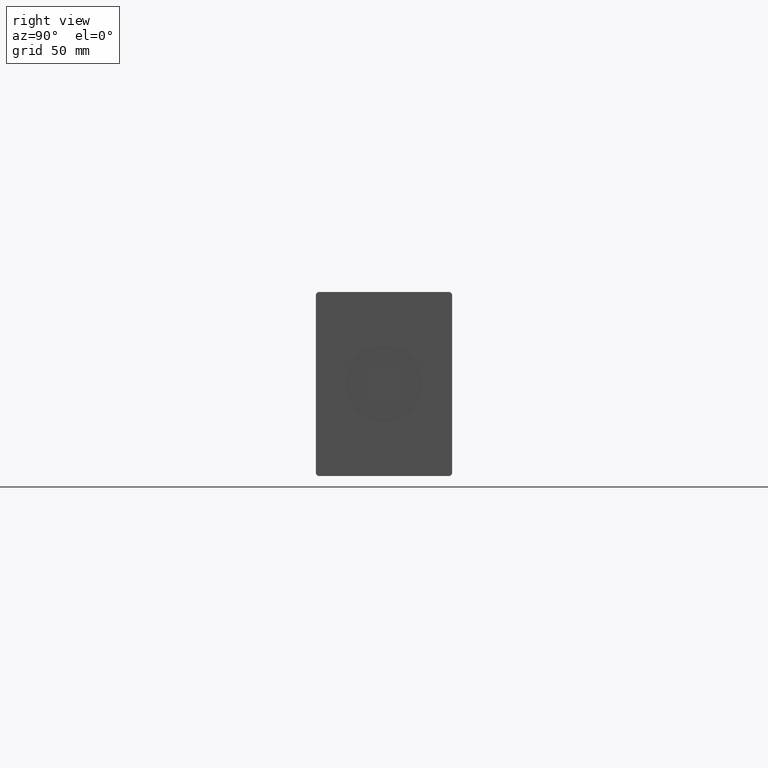
[diagram: clean part render]
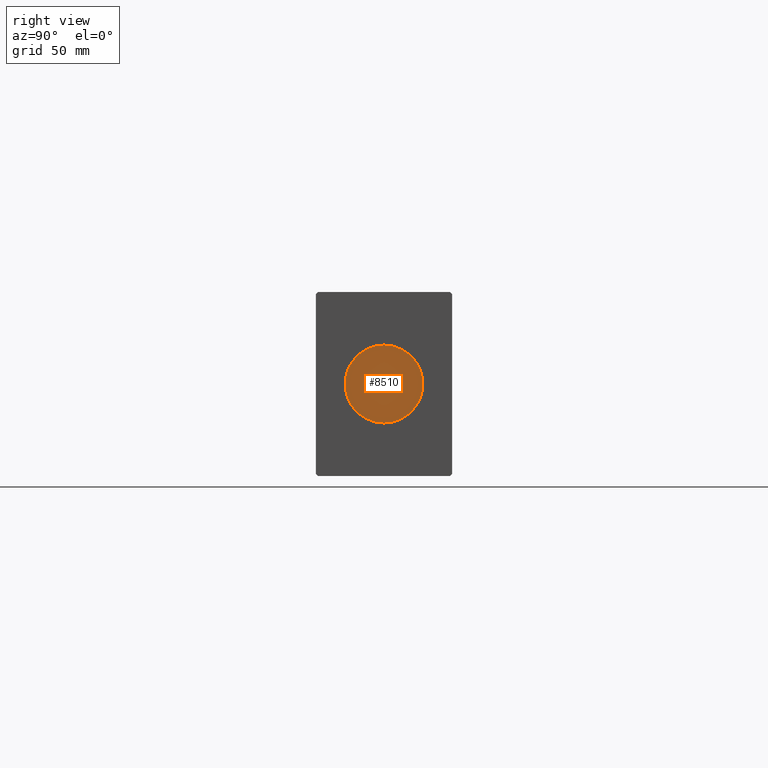
[diagram: same view with one face highlighted and labeled with its STEP entity id]
A machine part, right view. The second image highlights one B-rep face of the part: STEP entity #8510.
In plain terms, the highlighted planar face has unit normal (1, 0, 0).
Its self-contained STEP definition (entity closure, byte-faithful):
#1580 = EDGE_LOOP ( 'NONE', ( #8339, #39717 ) ) ;
#5329 = DIRECTION ( 'NONE',  ( 1.000000000000000000, 0.000000000000000000, 0.000000000000000000 ) ) ;
#8339 = ORIENTED_EDGE ( 'NONE', *, *, #15435, .T. ) ;
#8510 = ADVANCED_FACE ( 'NONE', ( #20925 ), #28368, .T. ) ;
#11555 = DIRECTION ( 'NONE',  ( 1.000000000000000000, 0.000000000000000000, 0.000000000000000000 ) ) ;
#14862 = CARTESIAN_POINT ( 'NONE',  ( 320.8000000000000114, 2.204364238465235428E-15, 18.00000000000000000 ) ) ;
#15435 = EDGE_CURVE ( 'NONE', #31396, #38246, #23981, .T. ) ;
#17901 = DIRECTION ( 'NONE',  ( 1.000000000000000000, 0.000000000000000000, 0.000000000000000000 ) ) ;
#20925 = FACE_OUTER_BOUND ( 'NONE', #1580, .T. ) ;
#21637 = EDGE_CURVE ( 'NONE', #38246, #31396, #37696, .T. ) ;
#21708 = CARTESIAN_POINT ( 'NONE',  ( 320.8000000000000114, 0.000000000000000000, 0.000000000000000000 ) ) ;
#23921 = AXIS2_PLACEMENT_3D ( 'NONE', #34745, #11555, #34323 ) ;
#23981 = CIRCLE ( 'NONE', #25325, 18.00000000000000000 ) ;
#25325 = AXIS2_PLACEMENT_3D ( 'NONE', #21708, #5329, #34274 ) ;
#27917 = DIRECTION ( 'NONE',  ( 0.000000000000000000, 0.000000000000000000, -1.000000000000000000 ) ) ;
#28368 = PLANE ( 'NONE',  #23921 ) ;
#31319 = CARTESIAN_POINT ( 'NONE',  ( 320.8000000000000114, 0.000000000000000000, 0.000000000000000000 ) ) ;
#31396 = VERTEX_POINT ( 'NONE', #37115 ) ;
#34274 = DIRECTION ( 'NONE',  ( 0.000000000000000000, 0.000000000000000000, -1.000000000000000000 ) ) ;
#34323 = DIRECTION ( 'NONE',  ( 0.000000000000000000, 0.000000000000000000, -1.000000000000000000 ) ) ;
#34745 = CARTESIAN_POINT ( 'NONE',  ( 320.8000000000000114, 0.000000000000000000, 0.000000000000000000 ) ) ;
#37115 = CARTESIAN_POINT ( 'NONE',  ( 320.8000000000000114, 0.000000000000000000, -18.00000000000000000 ) ) ;
#37696 = CIRCLE ( 'NONE', #39083, 18.00000000000000000 ) ;
#38246 = VERTEX_POINT ( 'NONE', #14862 ) ;
#39083 = AXIS2_PLACEMENT_3D ( 'NONE', #31319, #17901, #27917 ) ;
#39717 = ORIENTED_EDGE ( 'NONE', *, *, #21637, .T. ) ;